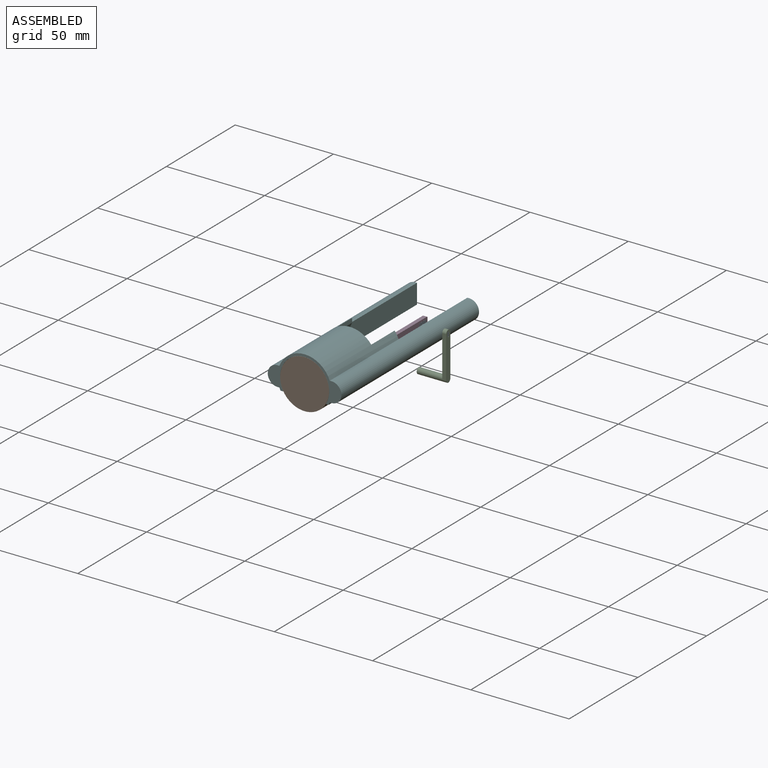
[diagram: assembled view]
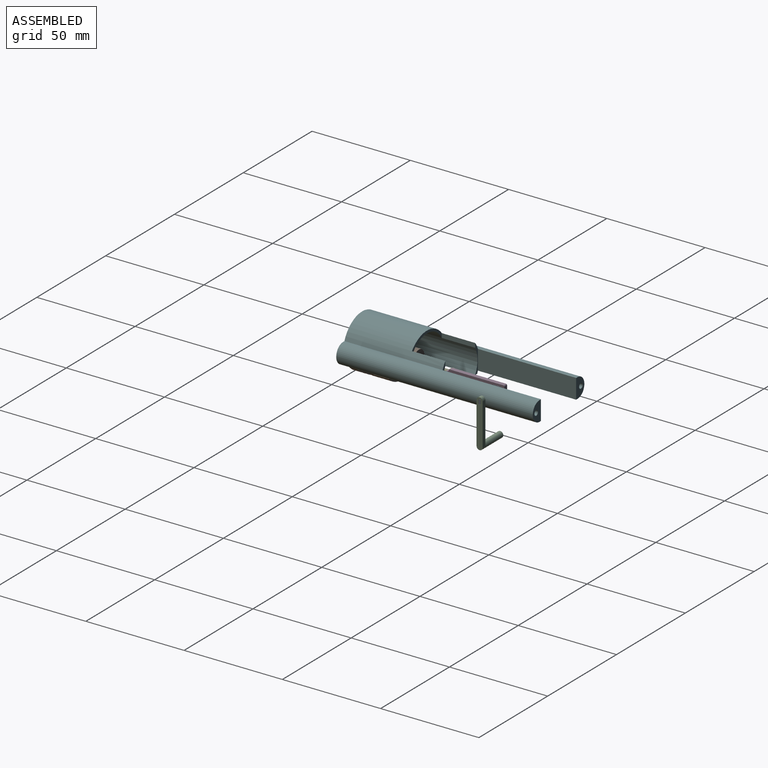
[diagram: assembled view, second angle]
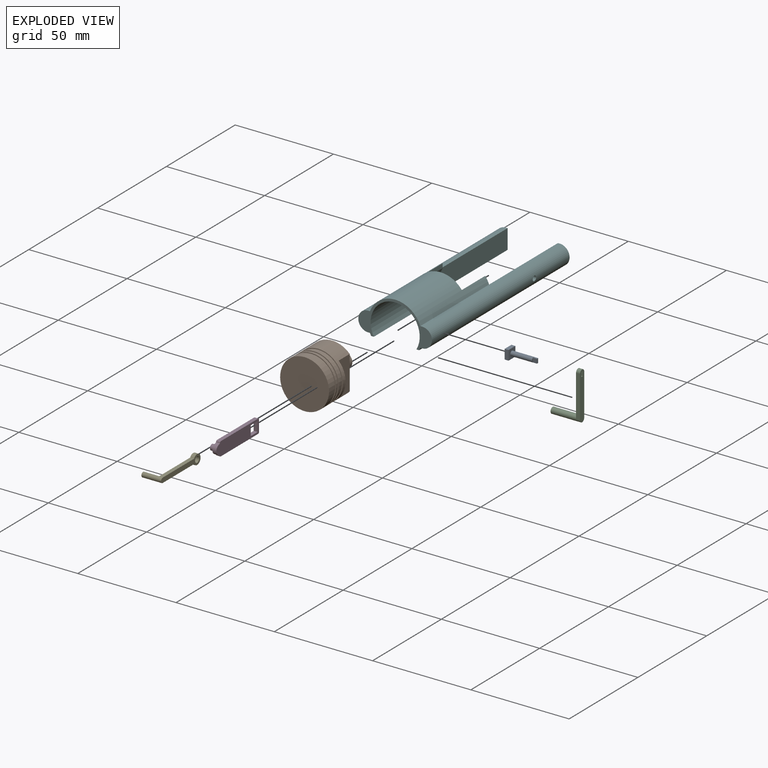
[diagram: exploded view]
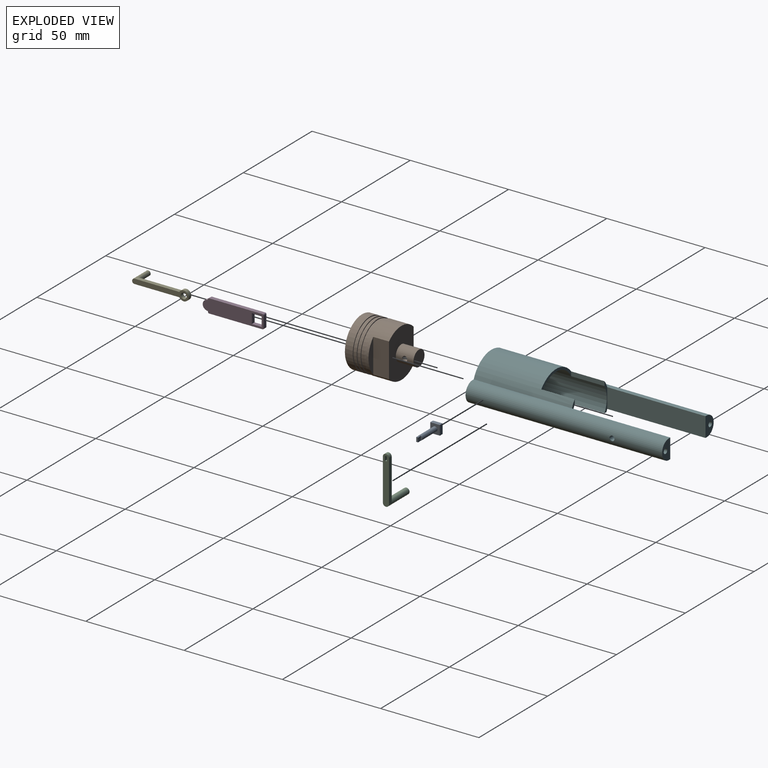
[diagram: exploded view, second angle]
ASSEMBLY  parts=6 mates=5
PART A: 13 faces, bbox 4.9x15x4.9 mm
  f0: plane 2.4x2.4mm, normal (0,-1,0), area 2.5mm2, adj f7,f8,f9,f10,f11
  f1: plane 4.9x2mm, normal (1,0,0), area 9.8mm2, adj f2,f4,f5,f6
  f2: plane 4.9x2mm, normal (0,0,1), area 9.8mm2, adj f1,f3,f5,f6
  f3: plane 4.9x2mm, normal (-1,0,0), area 9.8mm2, adj f2,f4,f5,f6
  f4: plane 4.9x2mm, normal (0,0,-1), area 9.8mm2, adj f1,f3,f5,f6
  f5: plane 4.9x4.9mm, normal (0,1,0), area 24mm2, adj f1,f2,f3,f4
  f6: plane 4.9x4.9mm, normal (0,-1,0), area 19.5mm2, adj f1,f2,f3,f4,f7
  f7: cylinder r=1.2mm len=11mm, axis (0,1,0), area 82.9mm2, adj f0,f6
  f8: plane 2x0.9mm, normal (0,0,-1), area 1.8mm2, adj f0,f9,f11,f12
  f9: plane 2.2x2mm, normal (1,0,0), area 4.4mm2, adj f0,f8,f10,f12
  f10: plane 2x0.9mm, normal (0,0,1), area 1.8mm2, adj f0,f9,f11,f12
  f11: plane 2.2x2mm, normal (-1,0,0), area 4.4mm2, adj f0,f8,f10,f12
  f12: plane 2.2x0.9mm, normal (0,-1,0), area 2mm2, adj f8,f9,f10,f11
PART B: 22 faces, bbox 24.9x29x24.9 mm
  f0: cylinder r=4mm len=9mm, axis (0,1,0), area 215.4mm2, adj f19,f20,f21
  f1: plane 17.31x3.5mm, normal (0,-1,0), area 41.7mm2, adj f15,f17
  f2: plane 17.31x3.5mm, normal (0,-1,0), area 41.7mm2, adj f15,f18
  f3: cylinder r=12.45mm len=24.9mm, axis (0,1,0), area 312.9mm2, adj f4,f5
  f4: plane 24.9x24.9mm, normal (0,-1,0), area 34.6mm2, adj f3,f6
  f5: plane 24.9x24.9mm, normal (0,1,0), area 487mm2, adj f3
  f6: cylinder r=12mm len=24mm, axis (0,1,0), area 75.4mm2, adj f4,f9
  f7: cylinder r=12.45mm len=24.9mm, axis (0,1,0), area 78.2mm2, adj f8,f9
  f8: plane 24.9x24.9mm, normal (0,-1,0), area 34.6mm2, adj f7,f10
  f9: plane 24.9x24.9mm, normal (0,1,0), area 34.6mm2, adj f6,f7
  f10: cylinder r=12mm len=24mm, axis (0,1,0), area 75.4mm2, adj f8,f13
  f11: cylinder r=12.45mm len=24.9mm, axis (0,1,0), area 78.2mm2, adj f12,f13
  f12: plane 24.9x24.9mm, normal (0,-1,0), area 34.6mm2, adj f11,f14
  f13: plane 24.9x24.9mm, normal (0,1,0), area 34.6mm2, adj f10,f11
  f14: cylinder r=12mm len=24mm, axis (0,1,0), area 150.8mm2, adj f12,f16
  f15: cylinder r=12.45mm len=24.9mm, axis (0,1,0), area 476mm2, adj f1,f2,f16,f17,f18,f19
  f16: plane 24.9x24.9mm, normal (0,1,0), area 34.6mm2, adj f14,f15
  f17: plane 17.31x8mm, normal (-1,0,0), area 138.5mm2, adj f1,f15,f19
  f18: plane 17.31x8mm, normal (1,0,0), area 138.5mm2, adj f2,f15,f19
  f19: plane 24.9x17.9mm, normal (0,-1,0), area 353.3mm2, adj f0,f15,f17,f18
  f20: plane 8x8mm, normal (0,-1,0), area 50.3mm2, adj f0
  f21: cylinder r=1.3mm len=8mm, axis (-1,0,0), area 63.6mm2, adj f0
PART C: 11 faces, bbox 3.1x15x24.3 mm
  f0: plane 22.75x3.1mm, normal (0,-1,0), area 63.4mm2, adj f1,f2,f3,f4,f5,f6,f7,f10
  f1: plane 2x1mm, normal (0,0,-1), area 2mm2, adj f0,f2,f7,f8
  f2: plane 2.3x2mm, normal (-1,0,0), area 4.6mm2, adj f0,f1,f3,f8
  f3: plane 2x1mm, normal (0,0,1), area 2mm2, adj f0,f2,f7,f8
  f4: cylinder r=1.55mm len=15mm, axis (0,1,0), area 136.3mm2, adj f0,f5,f6,f8,f9
  f5: plane 21.2x2mm, normal (1,0,0), area 42.4mm2, adj f0,f4,f8,f10
  f6: plane 21.2x2mm, normal (-1,0,0), area 42.4mm2, adj f0,f4,f8,f10
  f7: plane 2.3x2mm, normal (1,0,0), area 4.6mm2, adj f0,f1,f3,f8
  f8: plane 24.3x3.1mm, normal (0,1,0), area 71mm2, adj f1,f2,f3,f4,f5,f6,f7,f10
  f9: plane 3.1x3.1mm, normal (0,-1,0), area 7.5mm2, adj f4
  f10: cylinder r=1.55mm len=3.1mm, axis (0,1,0), area 9.7mm2, adj f0,f5,f6,f8
PART D: 19 faces, bbox 7x4x31 mm
  f0: plane 27.16x2mm, normal (-1,0,0), area 54.3mm2, adj f10,f11,f14,f18
  f1: plane 5.84x2mm, normal (0,0,-1), area 11.7mm2, adj f10,f11,f14,f15
  f2: plane 27.16x2mm, normal (1,0,0), area 54.3mm2, adj f10,f11,f15,f16
  f3: cylinder r=25mm len=2mm, axis (0,1,0), area 1mm2, adj f4,f10,f11,f16
  f4: cylinder r=2.5mm len=4.98mm, axis (0,1,0), area 15.3mm2, adj f3,f10,f11,f17
  f5: plane 5x2mm, normal (0,0,-1), area 10mm2, adj f6,f9,f10,f11
  f6: plane 5x2mm, normal (-1,0,0), area 10mm2, adj f5,f7,f10,f11
  f7: plane 5x2mm, normal (0,0,1), area 10mm2, adj f6,f9,f10,f11
  f8: cylinder r=25mm len=2mm, axis (0,1,0), area 0mm2, adj f10,f11,f17,f18
  f9: plane 5x2mm, normal (1,0,0), area 10mm2, adj f5,f7,f10,f11
  f10: plane 31x7mm, normal (0,-1,0), area 177.1mm2, adj f0,f1,f2,f3,f4,f5,f6,f7
  f11: plane 31x7mm, normal (0,1,0), area 183.7mm2, adj f0,f1,f2,f3,f4,f5,f6,f7
  f12: cylinder r=1.45mm len=2.9mm, axis (0,1,0), area 18.2mm2, adj f10,f13
  f13: plane 2.9x2.9mm, normal (0,-1,0), area 6.6mm2, adj f12
  f14: cylinder r=0.58mm len=2mm, axis (0,-1,0), area 1.8mm2, adj f0,f1,f10,f11
  f15: cylinder r=0.58mm len=2mm, axis (0,1,0), area 1.8mm2, adj f1,f2,f10,f11
  f16: cylinder r=0.58mm len=2mm, axis (0,1,0), area 1.7mm2, adj f2,f3,f10,f11
  f17: cylinder r=0.58mm len=2mm, axis (0,-1,0), area 1.5mm2, adj f4,f8,f10,f11
  f18: cylinder r=0.58mm len=2mm, axis (0,1,0), area 1.7mm2, adj f0,f8,f10,f11
PART E: 8 faces, bbox 5x10x28.7 mm
  f0: cylinder r=1.22mm len=10mm, axis (0,1,0), area 69.3mm2, adj f1,f3,f5,f6,f7
  f1: plane 22.82x2mm, normal (-1,0,0), area 45.6mm2, adj f0,f2,f5,f6
  f2: cylinder r=2.5mm len=5mm, axis (0,1,0), area 26.3mm2, adj f1,f3,f5,f6
  f3: plane 22.82x2mm, normal (1,0,0), area 45.6mm2, adj f0,f2,f5,f6
  f4: cylinder r=1.5mm len=3mm, axis (0,1,0), area 18.8mm2, adj f5,f6
  f5: plane 27.5x5mm, normal (0,-1,0), area 65.6mm2, adj f0,f1,f2,f3,f4
  f6: plane 28.73x5mm, normal (0,1,0), area 70.3mm2, adj f0,f1,f2,f3,f4
  f7: plane 2.45x2.45mm, normal (0,-1,0), area 4.7mm2, adj f0
PART F: 27 faces, bbox 37.5x100x20 mm
  f0: plane 14.71x1.98mm, normal (0,1,0), area 11.6mm2, adj f1,f2,f8,f9,f17,f25
  f1: cylinder r=13.75mm len=50mm, axis (0,1,0), area 1224mm2, adj f0,f4,f5,f6,f13,f24,f25,f26
  f2: cylinder r=12.5mm len=50mm, axis (0,1,0), area 2171.3mm2, adj f0,f4,f9,f10,f13,f24,f25,f26
  f3: cylinder r=5mm len=100mm, axis (0,-1,0), area 1565.9mm2, adj f5,f12,f13,f16,f19
  f4: plane 14.71x1.98mm, normal (0,1,0), area 11.6mm2, adj f1,f2,f10,f11,f15,f24
  f5: plane 100x0.94mm, normal (0,0,1), area 94.1mm2, adj f1,f3,f13,f15,f16
  f6: plane 100x0.94mm, normal (0,0,1), area 94.1mm2, adj f1,f13,f14,f17,f18
  f7: plane 100x0.94mm, normal (0,0,-1), area 94.1mm2, adj f8,f13,f14,f17,f18
  f8: cylinder r=13.75mm len=50mm, axis (0,1,0), area 68mm2, adj f0,f7,f9,f13
  f9: plane 50x1.42mm, normal (0,0,-1), area 71.1mm2, adj f0,f2,f8,f13
  f10: plane 50x1.42mm, normal (0,0,-1), area 71.1mm2, adj f2,f4,f11,f13
  f11: cylinder r=13.75mm len=50mm, axis (0,1,0), area 68mm2, adj f4,f10,f12,f13
  f12: plane 100x0.94mm, normal (0,0,-1), area 94.1mm2, adj f3,f11,f13,f15,f16
  f13: plane 37.5x19.99mm, normal (0,-1,0), area 152.5mm2, adj f1,f2,f3,f5,f6,f7,f8,f9
  f14: cylinder r=5mm len=100mm, axis (0,-1,0), area 1570.8mm2, adj f6,f7,f13,f18
  f15: plane 50x10mm, normal (-1,0,0), area 495.1mm2, adj f4,f5,f12,f16,f19
  f16: plane 10x5.94mm, normal (0,1,0), area 43.8mm2, adj f3,f5,f12,f15,f22
  f17: plane 50x10mm, normal (1,0,0), area 500mm2, adj f0,f6,f7,f18
  f18: plane 10x5.94mm, normal (0,1,0), area 43.8mm2, adj f6,f7,f14,f17,f20
  f19: cylinder r=1.25mm len=5.94mm, axis (-1,0,0), area 46mm2, adj f3,f15
  f20: cylinder r=1.25mm len=10mm, axis (0,1,0), area 78.5mm2, adj f18,f21
  f21: plane 2.5x2.5mm, normal (0,1,0), area 4.9mm2, adj f20
  f22: cylinder r=1.25mm len=10mm, axis (0,1,0), area 78.5mm2, adj f16,f23
  f23: plane 2.5x2.5mm, normal (0,1,0), area 4.9mm2, adj f22
  f24: plane 17x2.23mm, normal (-1,0,0), area 37.9mm2, adj f1,f2,f4,f26
  f25: plane 17x2.23mm, normal (1,0,0), area 37.9mm2, adj f0,f1,f2,f26
  f26: plane 21.66x7.51mm, normal (0,1,0), area 31.9mm2, adj f1,f2,f24,f25
PLACE A rot(axis=(0,0,1),90deg) t=(57.64,39.78,-23.86)mm
PLACE B rot(axis=(1,0,0),180deg) t=(49.69,-34.72,-23.86)mm
PLACE C rot(axis=(0,0,-1),90deg) t=(70.64,39.78,-23.86)mm
PLACE D rot(axis=(0.58,0.58,-0.58),120deg) t=(57.64,39.78,-23.86)mm
PLACE E rot(axis=(0.58,0.58,-0.58),120deg) t=(55.64,-10.22,-23.86)mm
PLACE F t=(49.69,15.28,-23.86)mm
MATE slider D.f12 <-> E.f4  axis (-1,0,0) through (53.64,14.78,-23.86)mm
MATE slider B.f3 <-> F.f2  axis (0,-1,0) through (49.69,-34.72,-23.86)mm
MATE slider A.f7 <-> D.f3  axis (-1,0,0) through (55.64,39.78,-23.86)mm
MATE fastened C.f8 <-> A.f7  axis (1,0,0) through (70.64,39.78,-23.86)mm
MATE slider E.f0 <-> B.f21  axis (-1,0,0) through (45.64,-10.22,-23.86)mm
